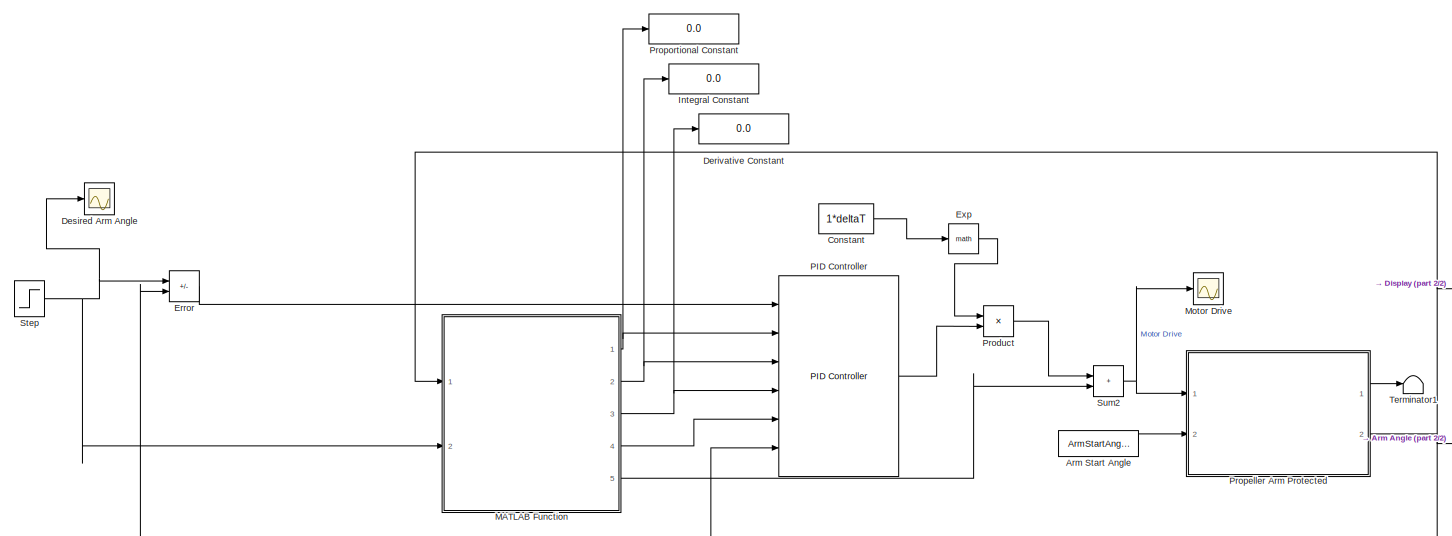
[diagram: root canvas - part 1/2, most of the canvas]
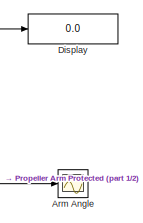
[diagram: root canvas - part 2/2, middle right region]
MODEL slx_8ed98db62ec7
KIND model
CONFIG AbsTol = auto
CONFIG EnableMultiTasking = off
CONFIG FixedStep = auto
CONFIG MaxStep = auto
CONFIG MinStep = auto
CONFIG RelTol = 1e-3
CONFIG SampleTimeConstraint = Unconstrained
CONFIG SolverName = FixedStepDiscrete
CONFIG StartTime = 0.0
CONFIG StopTime = 500
BLOCK [Scope] Arm Angle
  Floating = off
  NumInputPorts = 1
  Ports = [1]
  ScopeSpecificationString = Simulink.scopes.TimeScopeBlockCfg('CurrentConfiguration', extmgr.ConfigurationSet(extmgr.Configuration('Core','General UI',true),extmgr.Configuration('Core','Source UI',true),extmgr.Configuration('Sources','WiredSimulink',true,'DataLoggingVariableName','ArmAngle','DataLogging',true,'DataLoggingDecimateData',true,'DataLoggingDecimation','1','DataLoggingSaveFormat','Array'),extmgr.Configuration('Vis...<+2441ch>
BLOCK [Constant] Arm Start Angle
  Value = ArmStartAngle
BLOCK [Constant] Constant
  Value = 1*deltaT
BLOCK [Display] Derivative Constant
  Decimation = 1
  Ports = [1]
BLOCK [Scope] Desired Arm Angle
  Floating = off
  NumInputPorts = 1
  Ports = [1]
  ScopeSpecificationString = Simulink.scopes.TimeScopeBlockCfg('CurrentConfiguration', extmgr.ConfigurationSet(extmgr.Configuration('Core','General UI',true),extmgr.Configuration('Core','Source UI',true),extmgr.Configuration('Sources','WiredSimulink',true,'DataLoggingVariableName','ScopeData3'),extmgr.Configuration('Visuals','Time Domain',true,'SerializedDisplays',{struct('MinYLimReal','-1.00000','MaxYLimReal','1.00000','YLab...<+2240ch>
BLOCK [Display] Display
  Decimation = 1
  Ports = [1]
BLOCK [Sum] Error
  IconShape = rectangular
  Inputs = +-
  Ports = [2, 1]
BLOCK [Math] Exp
  Ports = [1, 1]
BLOCK [Display] Integral Constant
  Decimation = 1
  Ports = [1]
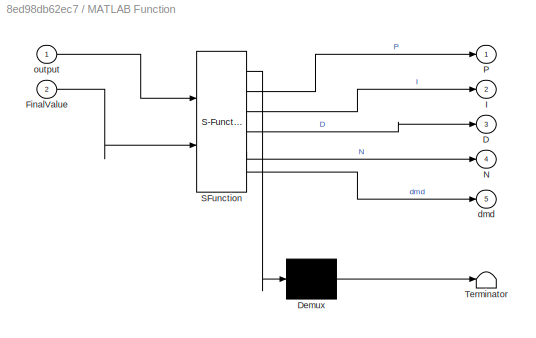
BLOCK [SubSystem] MATLAB Function
  ErrorFcn = Stateflow.Translate.translate
  PermitHierarchicalResolution = ExplicitOnly
  Ports = [2, 5]
  RequestExecContextInheritance = off
  SFBlockType = MATLAB Function
  TreatAsAtomicUnit = on
BLOCK [Demux] MATLAB Function/ Demux 
  Outputs = 1
  Ports = [1, 1]
BLOCK [S-Function] MATLAB Function/ SFunction 
  EnableBusSupport = on
  FunctionName = sf_sfun
  PortCounts = [2 6]
  Ports = [2, 6]
  SFcnIsStateOwnerBlock = off
  SFunctionDeploymentMode = off
  Tag = Stateflow S-Function 2
BLOCK [Terminator] MATLAB Function/ Terminator 
BLOCK [Outport] MATLAB Function/D
  Port = 3
BLOCK [Inport] MATLAB Function/FinalValue
  Port = 2
BLOCK [Outport] MATLAB Function/I
  Port = 2
BLOCK [Outport] MATLAB Function/N
  Port = 4
BLOCK [Outport] MATLAB Function/P
BLOCK [Outport] MATLAB Function/dmd
  Port = 5
BLOCK [Inport] MATLAB Function/output
BLOCK [Scope] Motor Drive
  Floating = off
  NumInputPorts = 1
  Ports = [1]
  ScopeSpecificationString = Simulink.scopes.TimeScopeBlockCfg('CurrentConfiguration', extmgr.ConfigurationSet(extmgr.Configuration('Core','General UI',true),extmgr.Configuration('Core','Source UI',true),extmgr.Configuration('Sources','WiredSimulink',true,'DataLoggingVariableName','ScopeData1'),extmgr.Configuration('Visuals','Time Domain',true,'SerializedDisplays',{struct('MinYLimReal','-6.55517','MaxYLimReal','6.75781','YLab...<+2271ch>
BLOCK [Reference] PID Controller  REF=pid_lib/PID Controller
  Ports = [6, 1]
  SourceBlock = pid_lib/PID Controller
  SourceProductBaseCode = SL
  SourceType = PID 1dof
BLOCK [Product] Product
  Ports = [2, 1]
BLOCK [ModelReference] Propeller Arm Protected
  CopyOfModelProtected = on
  ModelNameDialog = Propeller_Arm_Protected_deltaT_10ms.slxp
  ModelReferenceVersion = 3.39
  Ports = [2, 2]
BLOCK [Display] Proportional Constant
  Decimation = 1
  Ports = [1]
BLOCK [Step] Step
  After = FinalValue
  Before = InitialValue
  SampleTime = deltaT
  Time = StepTime
BLOCK [Sum] Sum2
  IconShape = rectangular
  Ports = [2, 1]
BLOCK [Terminator] Terminator1
LINE Arm Start Angle:1 -> Propeller Arm Protected:2
LINE Constant:1 -> Exp:1
LINE Error:1 -> PID Controller:1
LINE Exp:1 -> Product:1
NET MATLAB Function:1 -> PID Controller:2, Proportional Constant:1
NET MATLAB Function:2 -> Integral Constant:1, PID Controller:3
NET MATLAB Function:3 -> Derivative Constant:1, PID Controller:4
LINE MATLAB Function:4 -> PID Controller:5
LINE MATLAB Function:5 -> Sum2:2
LINE PID Controller:1 -> Product:2
LINE Product:1 -> Sum2:1
LINE Propeller Arm Protected:1 -> Terminator1:1
NET Propeller Arm Protected:2 -> Arm Angle:1, Display:1, Error:2, MATLAB Function:1, PID Controller:6
NET Step:1 -> Desired Arm Angle:1, Error:1, MATLAB Function:2
NET Sum2:1 -> Motor Drive:1, Propeller Arm Protected:1
note: NET lines group one-source signal fan-out (src -> all destinations, sorted); 1:1 wires keep LINE
CHART MATLAB Function states=1 transitions=1
  STATE_LABEL 'eML_blk_kernel()'
  STATE_LABEL 'SCRIPT:\nfunction [P, I, D, N, dmd] = adaptive_parameters(output, FinalValue)\n    if (FinalValue >= 75) && ((output >= 75) || ((30 >= output)&&(output > -20)) || ((75 > output)&&(output > 30)))\n        P = 1.385;\n        I = 0.01;\n        D = 0.35;\n        N = 53;\n        dmd = 0;\n\n    elseif ((15 >= FinalValue) && (FinalValue >= -20)) && (((30 >= output)&&(output > -20)) || ((47 >= output)&&(outpu...<+413ch>'
CHART  states=0 transitions=0
